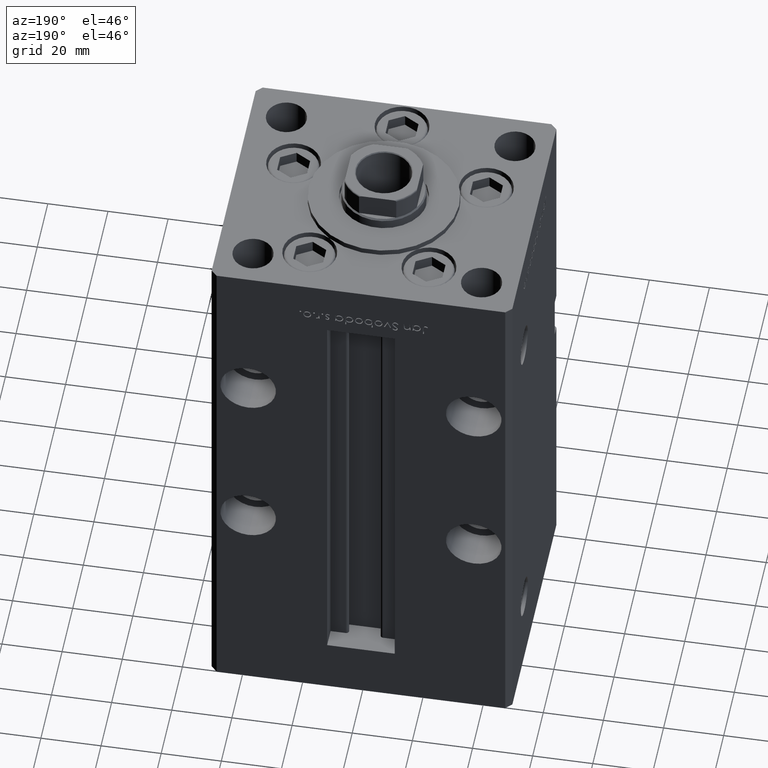
[diagram: clean part render]
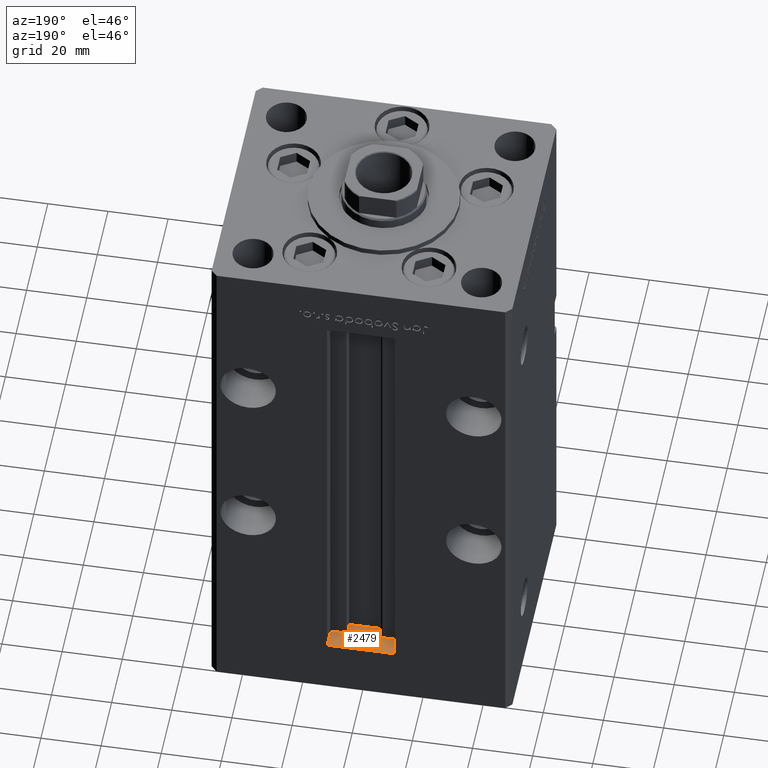
[diagram: same view with one face highlighted and labeled with its STEP entity id]
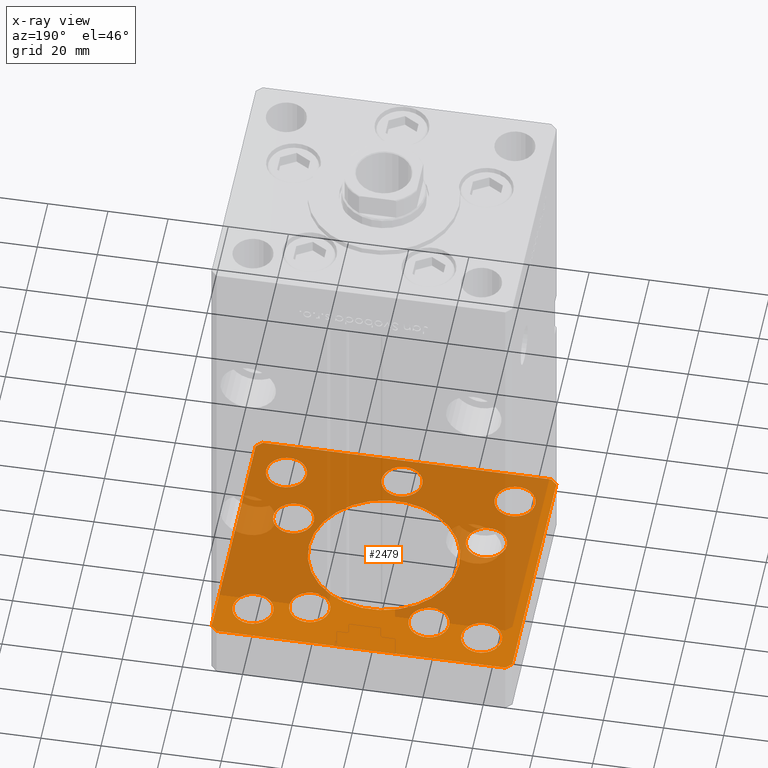
[diagram: x-ray of the same camera — body ghosted, the highlighted face saturated]
A machine part, auxiliary view. The second image highlights one B-rep face of the part: STEP entity #2479.
The next image is the same camera in x-ray: the body ghosted, the highlighted face saturated — about 73% of this face is hidden behind the body in this view.
In plain terms, the highlighted planar face has unit normal (0, 0, -1).
Its self-contained STEP definition (entity closure, byte-faithful):
#257 = CARTESIAN_POINT ( 'NONE',  ( 4.163799117101000559E-15, -34.00000000000000000, -19.00000000000000000 ) ) ;
#611 = EDGE_CURVE ( 'NONE', #31956, #19285, #38462, .T. ) ;
#697 = DIRECTION ( 'NONE',  ( 8.360113137237628665E-17, -1.000000000000000000, 0.000000000000000000 ) ) ;
#1070 = AXIS2_PLACEMENT_3D ( 'NONE', #50360, #17249, #25588 ) ;
#1184 = VERTEX_POINT ( 'NONE', #3278 ) ;
#1637 = CARTESIAN_POINT ( 'NONE',  ( 0.000000000000000000, 0.000000000000000000, -19.00000000000000000 ) ) ;
#1725 = EDGE_CURVE ( 'NONE', #21599, #47581, #8766, .T. ) ;
#1788 = EDGE_CURVE ( 'NONE', #47241, #12277, #18686, .T. ) ;
#1905 = EDGE_CURVE ( 'NONE', #19285, #31956, #22166, .T. ) ;
#2250 = EDGE_CURVE ( 'NONE', #46042, #7562, #31288, .T. ) ;
#2479 = ADVANCED_FACE ( 'NONE', ( #34199, #5400, #43077, #50624, #18311, #13752, #46334, #5126, #34735, #6193, #30171 ), #50886, .F. ) ;
#2715 = DIRECTION ( 'NONE',  ( -1.000000000000000000, -3.614007241618350743E-16, 0.000000000000000000 ) ) ;
#3093 = DIRECTION ( 'NONE',  ( 1.000000000000000000, 0.000000000000000000, 0.000000000000000000 ) ) ;
#3278 = CARTESIAN_POINT ( 'NONE',  ( 38.80550741379015278, -11.33333333333333037, -19.00000000000000000 ) ) ;
#3517 = VERTEX_POINT ( 'NONE', #51487 ) ;
#3527 = AXIS2_PLACEMENT_3D ( 'NONE', #45009, #37182, #42003 ) ;
#3587 = VERTEX_POINT ( 'NONE', #41231 ) ;
#3611 = AXIS2_PLACEMENT_3D ( 'NONE', #47655, #10776, #42818 ) ;
#3663 = CARTESIAN_POINT ( 'NONE',  ( 38.00000000000000000, 31.49999999999999289, -19.00000000000000000 ) ) ;
#4206 = CARTESIAN_POINT ( 'NONE',  ( 38.00000000000000000, 31.49999999999999289, -19.00000000000000000 ) ) ;
#5126 = FACE_BOUND ( 'NONE', #18357, .T. ) ;
#5332 = ORIENTED_EDGE ( 'NONE', *, *, #28158, .F. ) ;
#5400 = FACE_BOUND ( 'NONE', #44085, .T. ) ;
#5559 = CARTESIAN_POINT ( 'NONE',  ( -31.24999999999999289, -31.50000000000000000, -19.00000000000000000 ) ) ;
#5681 = CARTESIAN_POINT ( 'NONE',  ( -44.74999999999999289, -31.50000000000000000, -19.00000000000000000 ) ) ;
#5953 = EDGE_CURVE ( 'NONE', #30634, #16282, #41067, .T. ) ;
#6073 = VERTEX_POINT ( 'NONE', #42712 ) ;
#6193 = FACE_BOUND ( 'NONE', #36639, .T. ) ;
#6202 = AXIS2_PLACEMENT_3D ( 'NONE', #50547, #16913, #45723 ) ;
#6905 = VERTEX_POINT ( 'NONE', #12797 ) ;
#7320 = CARTESIAN_POINT ( 'NONE',  ( 50.00000000000000000, -41.49999999999999289, -19.00000000000000000 ) ) ;
#7562 = VERTEX_POINT ( 'NONE', #49228 ) ;
#8124 = VERTEX_POINT ( 'NONE', #18306 ) ;
#8573 = DIRECTION ( 'NONE',  ( 1.000000000000000000, 0.000000000000000000, 0.000000000000000000 ) ) ;
#8748 = VECTOR ( 'NONE', #22264, 1000.000000000000000 ) ;
#8766 = LINE ( 'NONE', #30031, #32462 ) ;
#9414 = CARTESIAN_POINT ( 'NONE',  ( 44.75000000000000000, -31.49999999999999289, -19.00000000000000000 ) ) ;
#9442 = DIRECTION ( 'NONE',  ( 1.000000000000000000, 0.000000000000000000, 0.000000000000000000 ) ) ;
#9704 = AXIS2_PLACEMENT_3D ( 'NONE', #50876, #14008, #30427 ) ;
#9754 = EDGE_LOOP ( 'NONE', ( #5332, #15902 ) ) ;
#10453 = EDGE_CURVE ( 'NONE', #44882, #6905, #47663, .T. ) ;
#10776 = DIRECTION ( 'NONE',  ( 0.000000000000000000, 0.000000000000000000, 1.000000000000000000 ) ) ;
#10798 = VERTEX_POINT ( 'NONE', #30643 ) ;
#10868 = CARTESIAN_POINT ( 'NONE',  ( 19.82068048781373193, 27.62500000000000000, -19.00000000000000000 ) ) ;
#10932 = AXIS2_PLACEMENT_3D ( 'NONE', #43312, #23906, #31717 ) ;
#10945 = CARTESIAN_POINT ( 'NONE',  ( 47.99999999999990763, 43.50000000000000000, -19.00000000000000000 ) ) ;
#10977 = AXIS2_PLACEMENT_3D ( 'NONE', #23800, #11159, #3093 ) ;
#11071 = CARTESIAN_POINT ( 'NONE',  ( -38.80550741379015278, -11.33333333333333925, -19.00000000000000000 ) ) ;
#11159 = DIRECTION ( 'NONE',  ( 0.000000000000000000, -0.000000000000000000, -1.000000000000000000 ) ) ;
#11165 = CARTESIAN_POINT ( 'NONE',  ( 50.00000000000000000, -41.49999999999999289, -19.00000000000000000 ) ) ;
#11266 = DIRECTION ( 'NONE',  ( 1.000000000000000000, 0.000000000000000000, 0.000000000000000000 ) ) ;
#11329 = AXIS2_PLACEMENT_3D ( 'NONE', #22421, #38850, #26992 ) ;
#11402 = ORIENTED_EDGE ( 'NONE', *, *, #44858, .F. ) ;
#11540 = EDGE_CURVE ( 'NONE', #18001, #47440, #48130, .T. ) ;
#11721 = DIRECTION ( 'NONE',  ( 1.000000000000000000, 0.000000000000000000, 0.000000000000000000 ) ) ;
#11738 = DIRECTION ( 'NONE',  ( 0.000000000000000000, 0.000000000000000000, 1.000000000000000000 ) ) ;
#12175 = DIRECTION ( 'NONE',  ( -0.000000000000000000, -0.000000000000000000, -1.000000000000000000 ) ) ;
#12273 = DIRECTION ( 'NONE',  ( 1.000000000000000000, 0.000000000000000000, 0.000000000000000000 ) ) ;
#12275 = CARTESIAN_POINT ( 'NONE',  ( 47.99999999999999289, -43.50000000000001421, -19.00000000000000000 ) ) ;
#12277 = VERTEX_POINT ( 'NONE', #45097 ) ;
#12453 = DIRECTION ( 'NONE',  ( 1.000000000000000000, 0.000000000000000000, 0.000000000000000000 ) ) ;
#12797 = CARTESIAN_POINT ( 'NONE',  ( -48.00000000000000711, 43.49999999999996447, -19.00000000000000000 ) ) ;
#12830 = EDGE_CURVE ( 'NONE', #6905, #3517, #13099, .T. ) ;
#13099 = LINE ( 'NONE', #37338, #18080 ) ;
#13167 = CIRCLE ( 'NONE', #9704, 6.749999999999999112 ) ;
#13752 = FACE_BOUND ( 'NONE', #49368, .T. ) ;
#13931 = VECTOR ( 'NONE', #26436, 1000.000000000000000 ) ;
#14008 = DIRECTION ( 'NONE',  ( 0.000000000000000000, 0.000000000000000000, 1.000000000000000000 ) ) ;
#14086 = AXIS2_PLACEMENT_3D ( 'NONE', #28133, #27328, #11721 ) ;
#14374 = DIRECTION ( 'NONE',  ( 0.000000000000000000, -0.000000000000000000, -1.000000000000000000 ) ) ;
#15177 = DIRECTION ( 'NONE',  ( 0.000000000000000000, -0.000000000000000000, -1.000000000000000000 ) ) ;
#15556 = AXIS2_PLACEMENT_3D ( 'NONE', #10868, #15177, #27022 ) ;
#15819 = CIRCLE ( 'NONE', #14086, 6.749999999999999112 ) ;
#15902 = ORIENTED_EDGE ( 'NONE', *, *, #27797, .F. ) ;
#16207 = CARTESIAN_POINT ( 'NONE',  ( -37.99999999999999289, -31.50000000000000000, -19.00000000000000000 ) ) ;
#16282 = VERTEX_POINT ( 'NONE', #23734 ) ;
#16412 = EDGE_CURVE ( 'NONE', #8124, #32135, #41367, .T. ) ;
#16489 = DIRECTION ( 'NONE',  ( 0.000000000000000000, -0.000000000000000000, -1.000000000000000000 ) ) ;
#16611 = CARTESIAN_POINT ( 'NONE',  ( -50.00000000000000000, -41.50000000000000000, -19.00000000000000000 ) ) ;
#16670 = ORIENTED_EDGE ( 'NONE', *, *, #47033, .F. ) ;
#16913 = DIRECTION ( 'NONE',  ( -0.000000000000000000, -0.000000000000000000, -1.000000000000000000 ) ) ;
#17158 = AXIS2_PLACEMENT_3D ( 'NONE', #52174, #27400, #43560 ) ;
#17249 = DIRECTION ( 'NONE',  ( -0.000000000000000000, -0.000000000000000000, -1.000000000000000000 ) ) ;
#17436 = EDGE_CURVE ( 'NONE', #46834, #6073, #19033, .T. ) ;
#17495 = CIRCLE ( 'NONE', #18378, 6.749999999999999112 ) ;
#17509 = EDGE_CURVE ( 'NONE', #48311, #52194, #44851, .T. ) ;
#17553 = ORIENTED_EDGE ( 'NONE', *, *, #17436, .F. ) ;
#17981 = ORIENTED_EDGE ( 'NONE', *, *, #38638, .F. ) ;
#18001 = VERTEX_POINT ( 'NONE', #46808 ) ;
#18080 = VECTOR ( 'NONE', #33034, 1000.000000000000000 ) ;
#18306 = CARTESIAN_POINT ( 'NONE',  ( 31.25000000000000000, -31.49999999999999289, -19.00000000000000000 ) ) ;
#18311 = FACE_BOUND ( 'NONE', #45635, .T. ) ;
#18357 = EDGE_LOOP ( 'NONE', ( #47830, #48097 ) ) ;
#18378 = AXIS2_PLACEMENT_3D ( 'NONE', #36945, #16489, #12453 ) ;
#18686 = CIRCLE ( 'NONE', #44511, 6.749999999999999112 ) ;
#19033 = CIRCLE ( 'NONE', #11329, 6.749999999999999112 ) ;
#19285 = VERTEX_POINT ( 'NONE', #37289 ) ;
#19317 = CARTESIAN_POINT ( 'NONE',  ( -6.749999999999994671, -34.00000000000000000, -19.00000000000000000 ) ) ;
#19347 = DIRECTION ( 'NONE',  ( 0.000000000000000000, -0.000000000000000000, -1.000000000000000000 ) ) ;
#19380 = CARTESIAN_POINT ( 'NONE',  ( -31.25000000000000000, 31.50000000000000000, -19.00000000000000000 ) ) ;
#20616 = DIRECTION ( 'NONE',  ( 0.000000000000000000, 0.000000000000000000, 1.000000000000000000 ) ) ;
#20621 = DIRECTION ( 'NONE',  ( 0.000000000000000000, -0.000000000000000000, -1.000000000000000000 ) ) ;
#20730 = ORIENTED_EDGE ( 'NONE', *, *, #29913, .F. ) ;
#20758 = CARTESIAN_POINT ( 'NONE',  ( -47.99999999999999289, -43.50000000000001421, -19.00000000000000000 ) ) ;
#21359 = EDGE_LOOP ( 'NONE', ( #45296, #29752 ) ) ;
#21599 = VERTEX_POINT ( 'NONE', #16611 ) ;
#22014 = CARTESIAN_POINT ( 'NONE',  ( -47.99999999999999289, -43.50000000000001421, -19.00000000000000000 ) ) ;
#22166 = CIRCLE ( 'NONE', #10977, 6.749999999999999112 ) ;
#22264 = DIRECTION ( 'NONE',  ( 1.000000000000000000, 0.000000000000000000, 0.000000000000000000 ) ) ;
#22421 = CARTESIAN_POINT ( 'NONE',  ( 19.82068048781373193, 27.62500000000000000, -19.00000000000000000 ) ) ;
#22531 = VECTOR ( 'NONE', #43734, 1000.000000000000114 ) ;
#22902 = EDGE_CURVE ( 'NONE', #29720, #46042, #26704, .T. ) ;
#23118 = CIRCLE ( 'NONE', #51481, 6.749999999999999112 ) ;
#23462 = EDGE_CURVE ( 'NONE', #52194, #48311, #38024, .T. ) ;
#23734 = CARTESIAN_POINT ( 'NONE',  ( 25.00000000000000000, 0.000000000000000000, -19.00000000000000000 ) ) ;
#23800 = CARTESIAN_POINT ( 'NONE',  ( -32.05550741379015278, -11.33333333333333925, -19.00000000000000000 ) ) ;
#23906 = DIRECTION ( 'NONE',  ( 0.000000000000000000, -0.000000000000000000, -1.000000000000000000 ) ) ;
#24433 = DIRECTION ( 'NONE',  ( 1.000000000000000000, 0.000000000000000000, 0.000000000000000000 ) ) ;
#25588 = DIRECTION ( 'NONE',  ( -1.000000000000000000, 0.000000000000000000, 0.000000000000000000 ) ) ;
#25712 = DIRECTION ( 'NONE',  ( 0.7071067811865474617, -0.7071067811865474617, 0.000000000000000000 ) ) ;
#26206 = ORIENTED_EDGE ( 'NONE', *, *, #23462, .F. ) ;
#26436 = DIRECTION ( 'NONE',  ( 0.7071067811865463515, 0.7071067811865487940, 0.000000000000000000 ) ) ;
#26673 = EDGE_CURVE ( 'NONE', #27374, #3587, #48433, .T. ) ;
#26704 = LINE ( 'NONE', #30490, #13931 ) ;
#26889 = CARTESIAN_POINT ( 'NONE',  ( 0.000000000000000000, 0.000000000000000000, -19.00000000000000000 ) ) ;
#26979 = EDGE_LOOP ( 'NONE', ( #27050, #32407 ) ) ;
#26992 = DIRECTION ( 'NONE',  ( 1.000000000000000000, 0.000000000000000000, 0.000000000000000000 ) ) ;
#27022 = DIRECTION ( 'NONE',  ( 1.000000000000000000, 0.000000000000000000, 0.000000000000000000 ) ) ;
#27050 = ORIENTED_EDGE ( 'NONE', *, *, #30137, .F. ) ;
#27122 = AXIS2_PLACEMENT_3D ( 'NONE', #26889, #19347, #11266 ) ;
#27328 = DIRECTION ( 'NONE',  ( 0.000000000000000000, -0.000000000000000000, -1.000000000000000000 ) ) ;
#27374 = VERTEX_POINT ( 'NONE', #19317 ) ;
#27400 = DIRECTION ( 'NONE',  ( 0.000000000000000000, -0.000000000000000000, -1.000000000000000000 ) ) ;
#27527 = ORIENTED_EDGE ( 'NONE', *, *, #47520, .F. ) ;
#27797 = EDGE_CURVE ( 'NONE', #10798, #1184, #15819, .T. ) ;
#27942 = CIRCLE ( 'NONE', #40816, 6.749999999999999112 ) ;
#28089 = VECTOR ( 'NONE', #47969, 1000.000000000000000 ) ;
#28133 = CARTESIAN_POINT ( 'NONE',  ( 32.05550741379015278, -11.33333333333333037, -19.00000000000000000 ) ) ;
#28158 = EDGE_CURVE ( 'NONE', #1184, #10798, #17495, .T. ) ;
#28986 = EDGE_LOOP ( 'NONE', ( #40904, #46718 ) ) ;
#29001 = DIRECTION ( 'NONE',  ( 0.000000000000000000, -0.000000000000000000, -1.000000000000000000 ) ) ;
#29720 = VERTEX_POINT ( 'NONE', #12275 ) ;
#29752 = ORIENTED_EDGE ( 'NONE', *, *, #26673, .F. ) ;
#29913 = EDGE_CURVE ( 'NONE', #47440, #18001, #27942, .T. ) ;
#30031 = CARTESIAN_POINT ( 'NONE',  ( -50.00000000000000000, -41.50000000000000000, -19.00000000000000000 ) ) ;
#30137 = EDGE_CURVE ( 'NONE', #16282, #30634, #33968, .T. ) ;
#30171 = FACE_BOUND ( 'NONE', #37101, .T. ) ;
#30427 = DIRECTION ( 'NONE',  ( 1.000000000000000000, 0.000000000000000000, 0.000000000000000000 ) ) ;
#30490 = CARTESIAN_POINT ( 'NONE',  ( 47.99999999999999289, -43.50000000000001421, -19.00000000000000000 ) ) ;
#30622 = EDGE_CURVE ( 'NONE', #12277, #47241, #35074, .T. ) ;
#30634 = VERTEX_POINT ( 'NONE', #49402 ) ;
#30643 = CARTESIAN_POINT ( 'NONE',  ( 25.30550741379015278, -11.33333333333333037, -19.00000000000000000 ) ) ;
#30790 = DIRECTION ( 'NONE',  ( 1.000000000000000000, 0.000000000000000000, 0.000000000000000000 ) ) ;
#31288 = LINE ( 'NONE', #7320, #28089 ) ;
#31436 = ORIENTED_EDGE ( 'NONE', *, *, #12830, .F. ) ;
#31556 = CARTESIAN_POINT ( 'NONE',  ( -13.07068048781373903, 27.62499999999999645, -19.00000000000000000 ) ) ;
#31717 = DIRECTION ( 'NONE',  ( 1.000000000000000000, 0.000000000000000000, 0.000000000000000000 ) ) ;
#31823 = ORIENTED_EDGE ( 'NONE', *, *, #1725, .F. ) ;
#31956 = VERTEX_POINT ( 'NONE', #11071 ) ;
#32061 = ORIENTED_EDGE ( 'NONE', *, *, #40673, .F. ) ;
#32135 = VERTEX_POINT ( 'NONE', #9414 ) ;
#32407 = ORIENTED_EDGE ( 'NONE', *, *, #5953, .F. ) ;
#32462 = VECTOR ( 'NONE', #25712, 1000.000000000000114 ) ;
#32885 = CIRCLE ( 'NONE', #1070, 6.749999999999999112 ) ;
#33034 = DIRECTION ( 'NONE',  ( -0.7071067811865463515, -0.7071067811865487940, 0.000000000000000000 ) ) ;
#33682 = CIRCLE ( 'NONE', #3611, 6.749999999999999112 ) ;
#33857 = LINE ( 'NONE', #22014, #8748 ) ;
#33912 = EDGE_CURVE ( 'NONE', #3587, #27374, #23118, .T. ) ;
#33968 = CIRCLE ( 'NONE', #27122, 25.00000000000000000 ) ;
#34199 = FACE_BOUND ( 'NONE', #26979, .T. ) ;
#34735 = FACE_OUTER_BOUND ( 'NONE', #48017, .T. ) ;
#34990 = DIRECTION ( 'NONE',  ( -0.000000000000000000, 0.000000000000000000, 1.000000000000000000 ) ) ;
#35074 = CIRCLE ( 'NONE', #42841, 6.749999999999999112 ) ;
#35322 = CARTESIAN_POINT ( 'NONE',  ( -44.75000000000000000, 31.50000000000000000, -19.00000000000000000 ) ) ;
#35575 = ORIENTED_EDGE ( 'NONE', *, *, #22902, .F. ) ;
#36639 = EDGE_LOOP ( 'NONE', ( #27527, #45881 ) ) ;
#36945 = CARTESIAN_POINT ( 'NONE',  ( 32.05550741379015278, -11.33333333333333037, -19.00000000000000000 ) ) ;
#37046 = LINE ( 'NONE', #50215, #48296 ) ;
#37054 = CARTESIAN_POINT ( 'NONE',  ( 4.163799117101000559E-15, -34.00000000000000000, -19.00000000000000000 ) ) ;
#37101 = EDGE_LOOP ( 'NONE', ( #26206, #43190 ) ) ;
#37182 = DIRECTION ( 'NONE',  ( -0.000000000000000000, -0.000000000000000000, -1.000000000000000000 ) ) ;
#37289 = CARTESIAN_POINT ( 'NONE',  ( -25.30550741379015278, -11.33333333333333925, -19.00000000000000000 ) ) ;
#37338 = CARTESIAN_POINT ( 'NONE',  ( -48.00000000000000711, 43.49999999999996447, -19.00000000000000000 ) ) ;
#38024 = CIRCLE ( 'NONE', #6202, 6.749999999999999112 ) ;
#38462 = CIRCLE ( 'NONE', #44468, 6.749999999999999112 ) ;
#38638 = EDGE_CURVE ( 'NONE', #6073, #46834, #51632, .T. ) ;
#38850 = DIRECTION ( 'NONE',  ( 0.000000000000000000, -0.000000000000000000, -1.000000000000000000 ) ) ;
#39852 = CARTESIAN_POINT ( 'NONE',  ( 47.99999999999990763, 43.50000000000000000, -19.00000000000000000 ) ) ;
#40314 = CARTESIAN_POINT ( 'NONE',  ( -32.05550741379015278, -11.33333333333333925, -19.00000000000000000 ) ) ;
#40673 = EDGE_CURVE ( 'NONE', #3517, #21599, #37046, .T. ) ;
#40816 = AXIS2_PLACEMENT_3D ( 'NONE', #51252, #14374, #30790 ) ;
#40904 = ORIENTED_EDGE ( 'NONE', *, *, #1788, .T. ) ;
#41067 = CIRCLE ( 'NONE', #10932, 25.00000000000000000 ) ;
#41231 = CARTESIAN_POINT ( 'NONE',  ( 6.750000000000003553, -34.00000000000000000, -19.00000000000000000 ) ) ;
#41330 = ORIENTED_EDGE ( 'NONE', *, *, #2250, .F. ) ;
#41348 = DIRECTION ( 'NONE',  ( 1.000000000000000000, 0.000000000000000000, 0.000000000000000000 ) ) ;
#41367 = CIRCLE ( 'NONE', #3527, 6.749999999999999112 ) ;
#41555 = CARTESIAN_POINT ( 'NONE',  ( 44.75000000000000000, 31.49999999999999289, -19.00000000000000000 ) ) ;
#41842 = AXIS2_PLACEMENT_3D ( 'NONE', #1637, #34990, #9442 ) ;
#42003 = DIRECTION ( 'NONE',  ( -1.000000000000000000, 0.000000000000000000, 0.000000000000000000 ) ) ;
#42712 = CARTESIAN_POINT ( 'NONE',  ( 13.07068048781373015, 27.62500000000000000, -19.00000000000000000 ) ) ;
#42818 = DIRECTION ( 'NONE',  ( 1.000000000000000000, 0.000000000000000000, 0.000000000000000000 ) ) ;
#42841 = AXIS2_PLACEMENT_3D ( 'NONE', #3663, #11738, #12273 ) ;
#43077 = FACE_BOUND ( 'NONE', #21359, .T. ) ;
#43145 = ORIENTED_EDGE ( 'NONE', *, *, #1905, .F. ) ;
#43190 = ORIENTED_EDGE ( 'NONE', *, *, #17509, .F. ) ;
#43312 = CARTESIAN_POINT ( 'NONE',  ( 0.000000000000000000, 0.000000000000000000, -19.00000000000000000 ) ) ;
#43358 = ORIENTED_EDGE ( 'NONE', *, *, #11540, .F. ) ;
#43560 = DIRECTION ( 'NONE',  ( 1.000000000000000000, 0.000000000000000000, 0.000000000000000000 ) ) ;
#43734 = DIRECTION ( 'NONE',  ( -0.7071067811865474617, 0.7071067811865474617, 0.000000000000000000 ) ) ;
#44085 = EDGE_LOOP ( 'NONE', ( #43145, #45285 ) ) ;
#44468 = AXIS2_PLACEMENT_3D ( 'NONE', #40314, #29001, #24433 ) ;
#44511 = AXIS2_PLACEMENT_3D ( 'NONE', #4206, #20616, #45924 ) ;
#44851 = CIRCLE ( 'NONE', #52599, 6.749999999999999112 ) ;
#44858 = EDGE_CURVE ( 'NONE', #47581, #29720, #33857, .T. ) ;
#44882 = VERTEX_POINT ( 'NONE', #10945 ) ;
#44950 = DIRECTION ( 'NONE',  ( 0.000000000000000000, -0.000000000000000000, -1.000000000000000000 ) ) ;
#45009 = CARTESIAN_POINT ( 'NONE',  ( 38.00000000000000000, -31.49999999999999289, -19.00000000000000000 ) ) ;
#45097 = CARTESIAN_POINT ( 'NONE',  ( 31.25000000000000000, 31.49999999999999289, -19.00000000000000000 ) ) ;
#45285 = ORIENTED_EDGE ( 'NONE', *, *, #611, .F. ) ;
#45296 = ORIENTED_EDGE ( 'NONE', *, *, #33912, .F. ) ;
#45635 = EDGE_LOOP ( 'NONE', ( #17553, #17981 ) ) ;
#45723 = DIRECTION ( 'NONE',  ( -1.000000000000000000, 0.000000000000000000, 0.000000000000000000 ) ) ;
#45881 = ORIENTED_EDGE ( 'NONE', *, *, #16412, .F. ) ;
#45924 = DIRECTION ( 'NONE',  ( 1.000000000000000000, 0.000000000000000000, 0.000000000000000000 ) ) ;
#46042 = VERTEX_POINT ( 'NONE', #11165 ) ;
#46334 = FACE_BOUND ( 'NONE', #28986, .T. ) ;
#46627 = EDGE_CURVE ( 'NONE', #47356, #47717, #33682, .T. ) ;
#46718 = ORIENTED_EDGE ( 'NONE', *, *, #30622, .T. ) ;
#46725 = LINE ( 'NONE', #51271, #22531 ) ;
#46808 = CARTESIAN_POINT ( 'NONE',  ( -26.57068048781373903, 27.62499999999999645, -19.00000000000000000 ) ) ;
#46834 = VERTEX_POINT ( 'NONE', #51947 ) ;
#47033 = EDGE_CURVE ( 'NONE', #7562, #44882, #46725, .T. ) ;
#47241 = VERTEX_POINT ( 'NONE', #41555 ) ;
#47356 = VERTEX_POINT ( 'NONE', #35322 ) ;
#47440 = VERTEX_POINT ( 'NONE', #31556 ) ;
#47520 = EDGE_CURVE ( 'NONE', #32135, #8124, #32885, .T. ) ;
#47581 = VERTEX_POINT ( 'NONE', #20758 ) ;
#47655 = CARTESIAN_POINT ( 'NONE',  ( -38.00000000000000000, 31.50000000000000000, -19.00000000000000000 ) ) ;
#47663 = LINE ( 'NONE', #39852, #48086 ) ;
#47717 = VERTEX_POINT ( 'NONE', #19380 ) ;
#47809 = ORIENTED_EDGE ( 'NONE', *, *, #10453, .F. ) ;
#47830 = ORIENTED_EDGE ( 'NONE', *, *, #49420, .T. ) ;
#47969 = DIRECTION ( 'NONE',  ( -1.003213576468515193E-15, 1.000000000000000000, 0.000000000000000000 ) ) ;
#48017 = EDGE_LOOP ( 'NONE', ( #31823, #32061, #31436, #47809, #16670, #41330, #35575, #11402 ) ) ;
#48086 = VECTOR ( 'NONE', #2715, 1000.000000000000000 ) ;
#48097 = ORIENTED_EDGE ( 'NONE', *, *, #46627, .T. ) ;
#48130 = CIRCLE ( 'NONE', #17158, 6.749999999999999112 ) ;
#48296 = VECTOR ( 'NONE', #697, 1000.000000000000000 ) ;
#48311 = VERTEX_POINT ( 'NONE', #5681 ) ;
#48433 = CIRCLE ( 'NONE', #49280, 6.749999999999999112 ) ;
#48521 = DIRECTION ( 'NONE',  ( -1.000000000000000000, 0.000000000000000000, 0.000000000000000000 ) ) ;
#49228 = CARTESIAN_POINT ( 'NONE',  ( 49.99999999999992184, 41.49999999999998579, -19.00000000000000000 ) ) ;
#49280 = AXIS2_PLACEMENT_3D ( 'NONE', #37054, #20621, #41348 ) ;
#49368 = EDGE_LOOP ( 'NONE', ( #20730, #43358 ) ) ;
#49402 = CARTESIAN_POINT ( 'NONE',  ( -25.00000000000000000, 3.061616997868382254E-15, -19.00000000000000000 ) ) ;
#49420 = EDGE_CURVE ( 'NONE', #47717, #47356, #13167, .T. ) ;
#50215 = CARTESIAN_POINT ( 'NONE',  ( -50.00000000000000711, 41.49999999999995026, -19.00000000000000000 ) ) ;
#50360 = CARTESIAN_POINT ( 'NONE',  ( 38.00000000000000000, -31.49999999999999289, -19.00000000000000000 ) ) ;
#50547 = CARTESIAN_POINT ( 'NONE',  ( -37.99999999999999289, -31.50000000000000000, -19.00000000000000000 ) ) ;
#50624 = FACE_BOUND ( 'NONE', #9754, .T. ) ;
#50876 = CARTESIAN_POINT ( 'NONE',  ( -38.00000000000000000, 31.50000000000000000, -19.00000000000000000 ) ) ;
#50886 = PLANE ( 'NONE',  #41842 ) ;
#51252 = CARTESIAN_POINT ( 'NONE',  ( -19.82068048781373903, 27.62499999999999645, -19.00000000000000000 ) ) ;
#51271 = CARTESIAN_POINT ( 'NONE',  ( 49.99999999999992184, 41.49999999999998579, -19.00000000000000000 ) ) ;
#51481 = AXIS2_PLACEMENT_3D ( 'NONE', #257, #44950, #8573 ) ;
#51487 = CARTESIAN_POINT ( 'NONE',  ( -50.00000000000000711, 41.49999999999995026, -19.00000000000000000 ) ) ;
#51632 = CIRCLE ( 'NONE', #15556, 6.749999999999999112 ) ;
#51947 = CARTESIAN_POINT ( 'NONE',  ( 26.57068048781372838, 27.62500000000000000, -19.00000000000000000 ) ) ;
#52174 = CARTESIAN_POINT ( 'NONE',  ( -19.82068048781373903, 27.62499999999999645, -19.00000000000000000 ) ) ;
#52194 = VERTEX_POINT ( 'NONE', #5559 ) ;
#52599 = AXIS2_PLACEMENT_3D ( 'NONE', #16207, #12175, #48521 ) ;